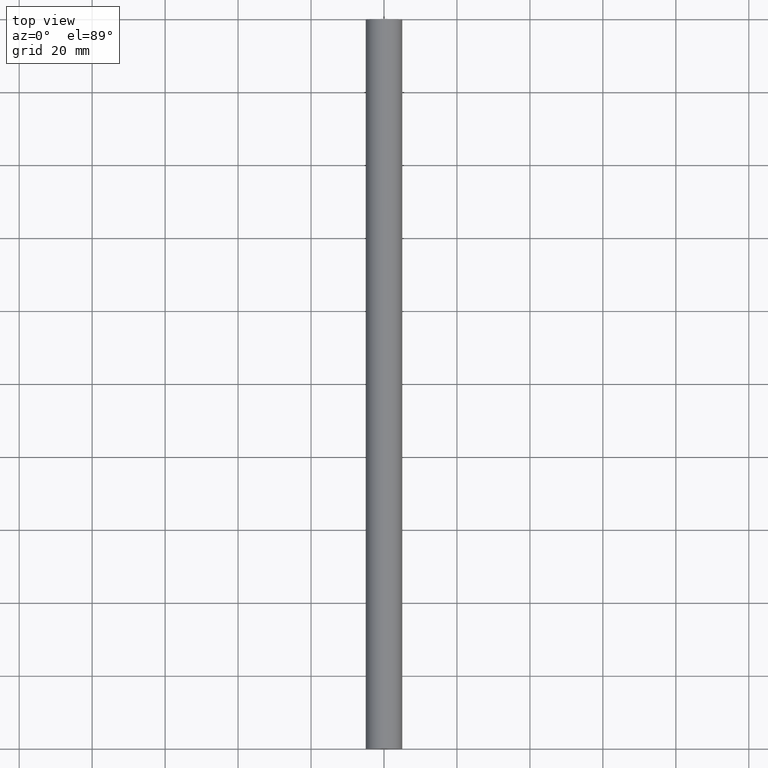
[diagram: clean part render]
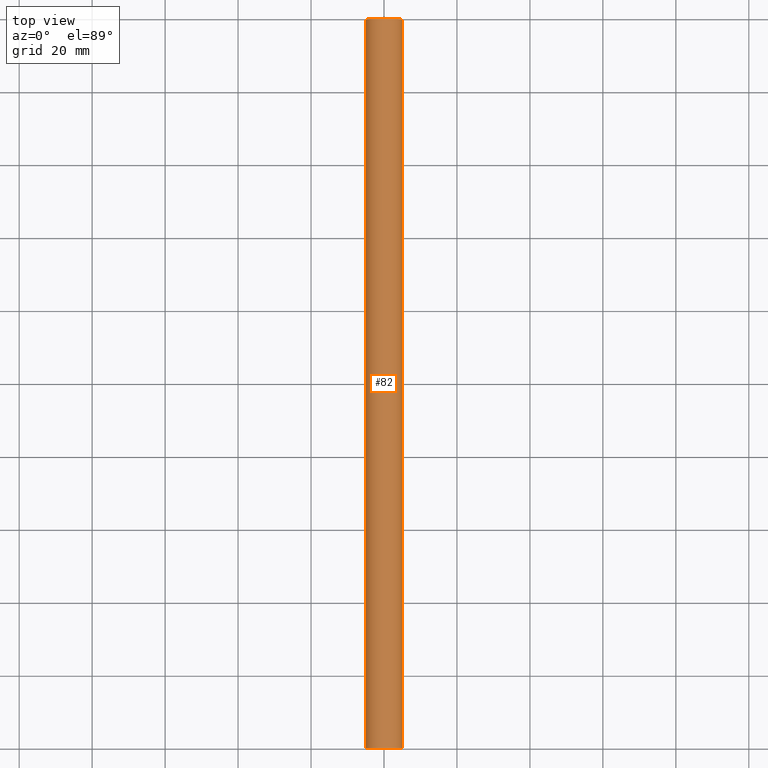
[diagram: same view with one face highlighted and labeled with its STEP entity id]
A machine part, top view. The second image highlights one B-rep face of the part: STEP entity #82.
In plain terms, the highlighted cylindrical surface (edge-blend (fillet) strip) has radius 5 mm, axis along (0, -1, 0).
Its self-contained STEP definition (entity closure, byte-faithful):
#1 = CARTESIAN_POINT ( 'NONE',  ( -5.000000000000000000, 0.0000000000000000000, 6.123031769111890200E-016 ) ) ;
#2 = CARTESIAN_POINT ( 'NONE',  ( 0.0000000000000000000, 0.0000000000000000000, 0.0000000000000000000 ) ) ;
#7 = VERTEX_POINT ( 'NONE', #163 ) ;
#24 = CARTESIAN_POINT ( 'NONE',  ( -5.000000000000000000, 200.0000000000000000, 6.123031769111890200E-016 ) ) ;
#30 = LINE ( 'NONE', #213, #125 ) ;
#31 = EDGE_CURVE ( 'NONE', #7, #51, #30, .T. ) ;
#38 = DIRECTION ( 'NONE',  ( 0.0000000000000000000, -1.000000000000000000, 0.0000000000000000000 ) ) ;
#40 = CIRCLE ( 'NONE', #86, 5.000000000000000000 ) ;
#45 = DIRECTION ( 'NONE',  ( 0.0000000000000000000, 0.0000000000000000000, 1.000000000000000000 ) ) ;
#49 = ORIENTED_EDGE ( 'NONE', *, *, #31, .F. ) ;
#51 = VERTEX_POINT ( 'NONE', #152 ) ;
#53 = DIRECTION ( 'NONE',  ( -0.0000000000000000000, -1.000000000000000000, -0.0000000000000000000 ) ) ;
#67 = CARTESIAN_POINT ( 'NONE',  ( -5.000000000000000000, 1000.000000000000000, 6.123031769111890200E-016 ) ) ;
#80 = FACE_OUTER_BOUND ( 'NONE', #105, .T. ) ;
#82 = ADVANCED_FACE ( 'NONE', ( #80 ), #211, .T. ) ;
#84 = VERTEX_POINT ( 'NONE', #1 ) ;
#86 = AXIS2_PLACEMENT_3D ( 'NONE', #2, #168, #45 ) ;
#91 = AXIS2_PLACEMENT_3D ( 'NONE', #96, #107, #181 ) ;
#96 = CARTESIAN_POINT ( 'NONE',  ( 0.0000000000000000000, 1000.000000000000000, 0.0000000000000000000 ) ) ;
#105 = EDGE_LOOP ( 'NONE', ( #141, #49, #178, #224 ) ) ;
#107 = DIRECTION ( 'NONE',  ( 0.0000000000000000000, -1.000000000000000000, 0.0000000000000000000 ) ) ;
#125 = VECTOR ( 'NONE', #38, 1000.000000000000000 ) ;
#134 = VERTEX_POINT ( 'NONE', #24 ) ;
#136 = DIRECTION ( 'NONE',  ( 0.0000000000000000000, -1.000000000000000000, 0.0000000000000000000 ) ) ;
#141 = ORIENTED_EDGE ( 'NONE', *, *, #212, .F. ) ;
#149 = DIRECTION ( 'NONE',  ( 0.0000000000000000000, 0.0000000000000000000, 1.000000000000000000 ) ) ;
#151 = LINE ( 'NONE', #67, #210 ) ;
#152 = CARTESIAN_POINT ( 'NONE',  ( 5.000000000000000000, 0.0000000000000000000, 0.0000000000000000000 ) ) ;
#163 = CARTESIAN_POINT ( 'NONE',  ( 5.000000000000000000, 200.0000000000000000, 0.0000000000000000000 ) ) ;
#168 = DIRECTION ( 'NONE',  ( -0.0000000000000000000, -1.000000000000000000, -0.0000000000000000000 ) ) ;
#178 = ORIENTED_EDGE ( 'NONE', *, *, #203, .T. ) ;
#181 = DIRECTION ( 'NONE',  ( 0.0000000000000000000, 0.0000000000000000000, -1.000000000000000000 ) ) ;
#190 = EDGE_CURVE ( 'NONE', #134, #84, #151, .T. ) ;
#203 = EDGE_CURVE ( 'NONE', #7, #134, #234, .T. ) ;
#210 = VECTOR ( 'NONE', #136, 1000.000000000000000 ) ;
#211 = CYLINDRICAL_SURFACE ( 'NONE', #91, 5.000000000000000000 ) ;
#212 = EDGE_CURVE ( 'NONE', #51, #84, #40, .T. ) ;
#213 = CARTESIAN_POINT ( 'NONE',  ( 5.000000000000000000, 1000.000000000000000, 0.0000000000000000000 ) ) ;
#218 = CARTESIAN_POINT ( 'NONE',  ( 0.0000000000000000000, 200.0000000000000000, 0.0000000000000000000 ) ) ;
#224 = ORIENTED_EDGE ( 'NONE', *, *, #190, .T. ) ;
#225 = AXIS2_PLACEMENT_3D ( 'NONE', #218, #53, #149 ) ;
#234 = CIRCLE ( 'NONE', #225, 5.000000000000000000 ) ;